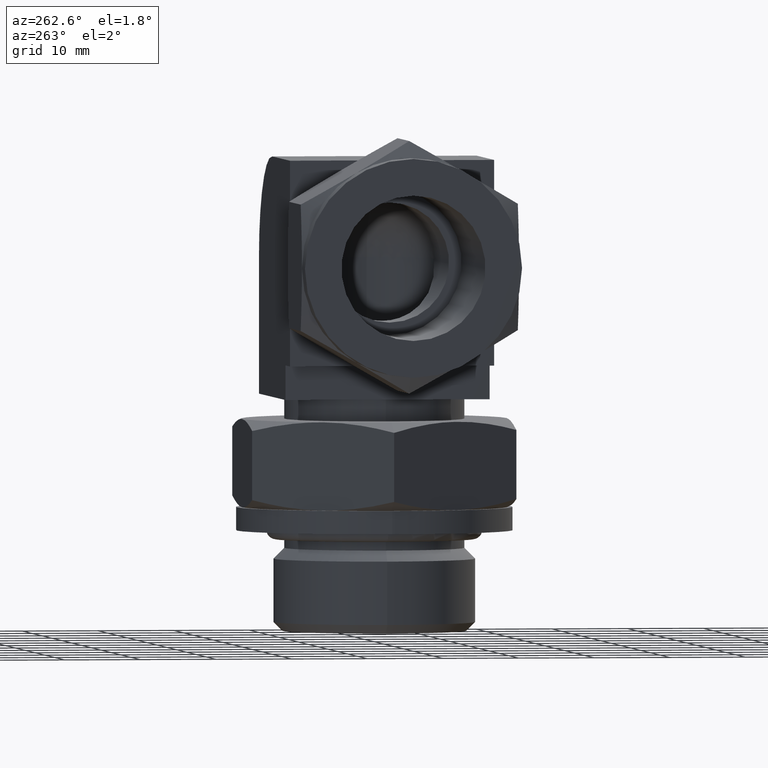
[diagram: clean part render]
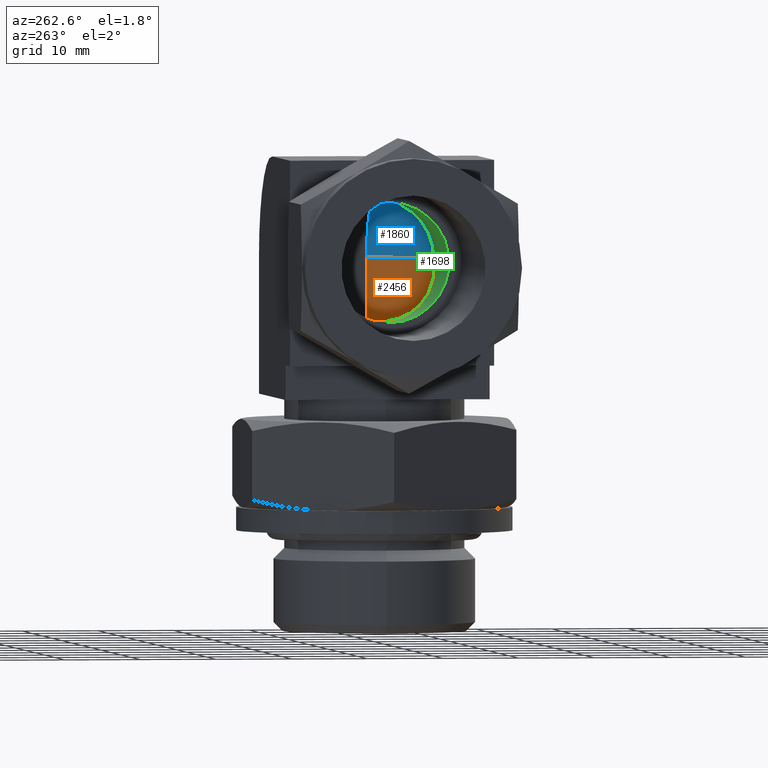
[diagram: same view with three faces highlighted in distinct colors, each labeled with its STEP entity id]
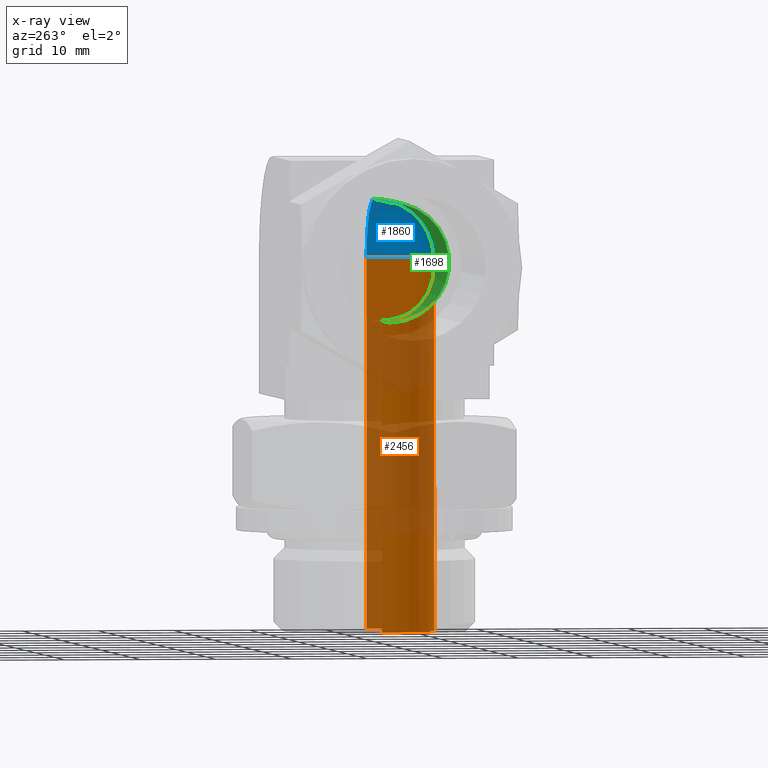
[diagram: x-ray of the same camera — body ghosted, the three highlighted faces saturated]
A machine part, auxiliary view with three faces highlighted in distinct colors.
The next image is the same camera in x-ray (body ghosted, the three faces saturated) — at least one of them is partly hidden behind the body in this view.
Their STEP definitions:

[orange] entity #2456 — the highlighted cylindrical surface (partial cylindrical patch) has radius 7.874 mm, axis along (0, 0, -1).
#157 = CARTESIAN_POINT ( 'NONE',  ( 35.26551759012575360, -7.873999999999998778, -4.612482409874222533 ) ) ;
#186 = DIRECTION ( 'NONE',  ( 0.000000000000000000, 0.000000000000000000, 1.000000000000000000 ) ) ;
#208 = ORIENTED_EDGE ( 'NONE', *, *, #1569, .T. ) ;
#297 = EDGE_CURVE ( 'NONE', #2180, #1265, #2218, .T. ) ;
#355 = VERTEX_POINT ( 'NONE', #440 ) ;
#440 = CARTESIAN_POINT ( 'NONE',  ( 47.75200000000000244, -9.642550429997377816E-16, 0.000000000000000000 ) ) ;
#480 = CARTESIAN_POINT ( 'NONE',  ( 32.00399999999999778, -9.642550429997389649E-16, -33.40100000000000335 ) ) ;
#497 = VECTOR ( 'NONE', #2038, 1000.000000000000000 ) ;
#508 = LINE ( 'NONE', #1984, #1032 ) ;
#523 = CARTESIAN_POINT ( 'NONE',  ( 32.00400000000001910, -4.612482409874249178, -7.873999999999954369 ) ) ;
#573 = CARTESIAN_POINT ( 'NONE',  ( 39.87800000000000011, 0.000000000000000000, -33.40100000000000335 ) ) ;
#574 = CARTESIAN_POINT ( 'NONE',  ( 39.87800000000000011, 0.000000000000000000, 0.000000000000000000 ) ) ;
#719 = AXIS2_PLACEMENT_3D ( 'NONE', #1752, #1922, #1147 ) ;
#756 = ORIENTED_EDGE ( 'NONE', *, *, #1969, .T. ) ;
#796 = CIRCLE ( 'NONE', #1445, 7.873999999999998778 ) ;
#932 = ORIENTED_EDGE ( 'NONE', *, *, #297, .T. ) ;
#962 = DIRECTION ( 'NONE',  ( 1.000000000000000000, 0.000000000000000000, 0.000000000000000000 ) ) ;
#1004 = AXIS2_PLACEMENT_3D ( 'NONE', #573, #1348, #1897 ) ;
#1032 = VECTOR ( 'NONE', #1455, 1000.000000000000000 ) ;
#1147 = DIRECTION ( 'NONE',  ( -1.000000000000000000, 0.000000000000000000, 0.000000000000000000 ) ) ;
#1245 = CIRCLE ( 'NONE', #719, 7.873999999999998778 ) ;
#1265 = VERTEX_POINT ( 'NONE', #1344 ) ;
#1336 = EDGE_CURVE ( 'NONE', #1374, #1265, #1340, .T. ) ;
#1340 =( BOUNDED_CURVE ( )  B_SPLINE_CURVE ( 3, ( #2449, #157, #523, #2283 ),
 .UNSPECIFIED., .F., .T. ) 
 B_SPLINE_CURVE_WITH_KNOTS ( ( 4, 4 ),
 ( 1.570796326794896780, 3.141592653589793116 ),
 .UNSPECIFIED. ) 
 CURVE ( )  GEOMETRIC_REPRESENTATION_ITEM ( )  RATIONAL_B_SPLINE_CURVE ( ( 1.000000000000000000, 0.8047378541243650485, 0.8047378541243650485, 1.000000000000000000 ) ) 
 REPRESENTATION_ITEM ( '' )  );
#1344 = CARTESIAN_POINT ( 'NONE',  ( 32.00399999999999778, -9.642550429997389649E-16, -7.874000000000000554 ) ) ;
#1348 = DIRECTION ( 'NONE',  ( 1.110223024625159992E-16, 0.000000000000000000, -1.000000000000000000 ) ) ;
#1374 = VERTEX_POINT ( 'NONE', #2141 ) ;
#1445 = AXIS2_PLACEMENT_3D ( 'NONE', #574, #186, #962 ) ;
#1455 = DIRECTION ( 'NONE',  ( 1.110223024625159992E-16, 0.000000000000000000, -1.000000000000000000 ) ) ;
#1534 = EDGE_LOOP ( 'NONE', ( #932, #1720, #756, #208, #1947 ) ) ;
#1541 = FACE_OUTER_BOUND ( 'NONE', #1534, .T. ) ;
#1569 = EDGE_CURVE ( 'NONE', #355, #1791, #508, .T. ) ;
#1720 = ORIENTED_EDGE ( 'NONE', *, *, #1336, .F. ) ;
#1736 = CARTESIAN_POINT ( 'NONE',  ( 47.75200000000000244, 9.642550429997389649E-16, -48.76800000000000068 ) ) ;
#1752 = CARTESIAN_POINT ( 'NONE',  ( 39.87800000000000011, 0.000000000000000000, -48.76800000000000068 ) ) ;
#1791 = VERTEX_POINT ( 'NONE', #1736 ) ;
#1897 = DIRECTION ( 'NONE',  ( -1.000000000000000000, 0.000000000000000000, 0.000000000000000000 ) ) ;
#1922 = DIRECTION ( 'NONE',  ( -1.110223024625159992E-16, 0.000000000000000000, 1.000000000000000000 ) ) ;
#1947 = ORIENTED_EDGE ( 'NONE', *, *, #1953, .F. ) ;
#1953 = EDGE_CURVE ( 'NONE', #2180, #1791, #1245, .T. ) ;
#1969 = EDGE_CURVE ( 'NONE', #1374, #355, #796, .T. ) ;
#1984 = CARTESIAN_POINT ( 'NONE',  ( 47.75200000000000244, 9.642550429997389649E-16, -33.40100000000000335 ) ) ;
#2038 = DIRECTION ( 'NONE',  ( -1.110223024625159992E-16, 0.000000000000000000, 1.000000000000000000 ) ) ;
#2141 = CARTESIAN_POINT ( 'NONE',  ( 39.87800000000000011, -7.874000000000000554, 0.000000000000000000 ) ) ;
#2180 = VERTEX_POINT ( 'NONE', #2259 ) ;
#2218 = LINE ( 'NONE', #480, #497 ) ;
#2259 = CARTESIAN_POINT ( 'NONE',  ( 32.00399999999999778, 0.000000000000000000, -48.76800000000000068 ) ) ;
#2283 = CARTESIAN_POINT ( 'NONE',  ( 32.00399999999999778, -9.642550429997389649E-16, -7.874000000000000554 ) ) ;
#2307 = CYLINDRICAL_SURFACE ( 'NONE', #1004, 7.873999999999998778 ) ;
#2449 = CARTESIAN_POINT ( 'NONE',  ( 39.87800000000000011, -7.874000000000000554, 0.000000000000000000 ) ) ;
#2456 = ADVANCED_FACE ( 'NONE', ( #1541 ), #2307, .F. ) ;

[blue] entity #1860 — the highlighted spherical surface has radius 7.874 mm.
#125 = DIRECTION ( 'NONE',  ( 0.000000000000000000, 0.000000000000000000, -1.000000000000000000 ) ) ;
#142 = AXIS2_PLACEMENT_3D ( 'NONE', #901, #1862, #125 ) ;
#186 = DIRECTION ( 'NONE',  ( 0.000000000000000000, 0.000000000000000000, 1.000000000000000000 ) ) ;
#266 = DIRECTION ( 'NONE',  ( 0.000000000000000000, 0.000000000000000000, 1.000000000000000000 ) ) ;
#340 = CIRCLE ( 'NONE', #1071, 7.874000000000000554 ) ;
#344 = CIRCLE ( 'NONE', #142, 7.874000000000000554 ) ;
#355 = VERTEX_POINT ( 'NONE', #440 ) ;
#440 = CARTESIAN_POINT ( 'NONE',  ( 47.75200000000000244, -9.642550429997377816E-16, 0.000000000000000000 ) ) ;
#486 = ORIENTED_EDGE ( 'NONE', *, *, #1969, .F. ) ;
#574 = CARTESIAN_POINT ( 'NONE',  ( 39.87800000000000011, 0.000000000000000000, 0.000000000000000000 ) ) ;
#604 = CARTESIAN_POINT ( 'NONE',  ( 39.87800000000000011, 1.726674436047150038E-31, 2.819966482547900216E-15 ) ) ;
#676 = AXIS2_PLACEMENT_3D ( 'NONE', #604, #1570, #1153 ) ;
#796 = CIRCLE ( 'NONE', #1445, 7.873999999999998778 ) ;
#901 = CARTESIAN_POINT ( 'NONE',  ( 39.87800000000000011, 0.000000000000000000, 2.002176202609009946E-15 ) ) ;
#962 = DIRECTION ( 'NONE',  ( 1.000000000000000000, 0.000000000000000000, 0.000000000000000000 ) ) ;
#1071 = AXIS2_PLACEMENT_3D ( 'NONE', #1096, #2377, #266 ) ;
#1096 = CARTESIAN_POINT ( 'NONE',  ( 39.87800000000000011, 1.726674436047150038E-31, 2.819966482547900216E-15 ) ) ;
#1122 = EDGE_CURVE ( 'NONE', #1611, #355, #340, .T. ) ;
#1153 = DIRECTION ( 'NONE',  ( 1.000000000000000000, 0.000000000000000000, 0.000000000000000000 ) ) ;
#1374 = VERTEX_POINT ( 'NONE', #2141 ) ;
#1375 = FACE_OUTER_BOUND ( 'NONE', #1476, .T. ) ;
#1445 = AXIS2_PLACEMENT_3D ( 'NONE', #574, #186, #962 ) ;
#1474 = ORIENTED_EDGE ( 'NONE', *, *, #1122, .T. ) ;
#1476 = EDGE_LOOP ( 'NONE', ( #1474, #486, #1908 ) ) ;
#1570 = DIRECTION ( 'NONE',  ( 0.000000000000000000, 1.000000000000000000, 0.000000000000000000 ) ) ;
#1611 = VERTEX_POINT ( 'NONE', #1822 ) ;
#1708 = EDGE_CURVE ( 'NONE', #1611, #1374, #344, .T. ) ;
#1822 = CARTESIAN_POINT ( 'NONE',  ( 39.87800000000000011, 2.797212586396380391E-31, 7.874000000000000554 ) ) ;
#1860 = ADVANCED_FACE ( 'NONE', ( #1375 ), #2338, .F. ) ;
#1862 = DIRECTION ( 'NONE',  ( 1.000000000000000000, 0.000000000000000000, 1.110223024625159992E-16 ) ) ;
#1908 = ORIENTED_EDGE ( 'NONE', *, *, #1708, .F. ) ;
#1969 = EDGE_CURVE ( 'NONE', #1374, #355, #796, .T. ) ;
#2141 = CARTESIAN_POINT ( 'NONE',  ( 39.87800000000000011, -7.874000000000000554, 0.000000000000000000 ) ) ;
#2338 = SPHERICAL_SURFACE ( 'NONE', #676, 7.874000000000000554 ) ;
#2377 = DIRECTION ( 'NONE',  ( 1.224606353822379970E-16, 1.000000000000000000, 0.000000000000000000 ) ) ;

[green] entity #1698 — the highlighted cylindrical surface (partial cylindrical patch) has radius 7.874 mm, axis along (1, 0, 0).
#6 = EDGE_CURVE ( 'NONE', #337, #1704, #288, .T. ) ;
#15 = ORIENTED_EDGE ( 'NONE', *, *, #496, .T. ) ;
#125 = DIRECTION ( 'NONE',  ( 0.000000000000000000, 0.000000000000000000, -1.000000000000000000 ) ) ;
#142 = AXIS2_PLACEMENT_3D ( 'NONE', #901, #1862, #125 ) ;
#157 = CARTESIAN_POINT ( 'NONE',  ( 35.26551759012575360, -7.873999999999998778, -4.612482409874222533 ) ) ;
#204 = DIRECTION ( 'NONE',  ( 1.000000000000000000, 0.000000000000000000, 1.110223024625159992E-16 ) ) ;
#288 = CIRCLE ( 'NONE', #1673, 7.874000000000000554 ) ;
#337 = VERTEX_POINT ( 'NONE', #491 ) ;
#344 = CIRCLE ( 'NONE', #142, 7.874000000000000554 ) ;
#369 = DIRECTION ( 'NONE',  ( 0.000000000000000000, 0.000000000000000000, -1.000000000000000000 ) ) ;
#491 = CARTESIAN_POINT ( 'NONE',  ( 24.38400000000000034, -9.642550429997399509E-16, -7.874000000000000554 ) ) ;
#496 = EDGE_CURVE ( 'NONE', #1265, #337, #2291, .T. ) ;
#523 = CARTESIAN_POINT ( 'NONE',  ( 32.00400000000001910, -4.612482409874249178, -7.873999999999954369 ) ) ;
#572 = DIRECTION ( 'NONE',  ( -1.000000000000000000, 0.000000000000000000, -1.110223024625159992E-16 ) ) ;
#586 = LINE ( 'NONE', #1955, #1995 ) ;
#859 = ORIENTED_EDGE ( 'NONE', *, *, #979, .T. ) ;
#901 = CARTESIAN_POINT ( 'NONE',  ( 39.87800000000000011, 0.000000000000000000, 2.002176202609009946E-15 ) ) ;
#943 = FACE_OUTER_BOUND ( 'NONE', #2170, .T. ) ;
#979 = EDGE_CURVE ( 'NONE', #1704, #1611, #586, .T. ) ;
#986 = ORIENTED_EDGE ( 'NONE', *, *, #1336, .T. ) ;
#1133 = CARTESIAN_POINT ( 'NONE',  ( 30.86100000000000065, 0.000000000000000000, 1.001088101304499845E-15 ) ) ;
#1265 = VERTEX_POINT ( 'NONE', #1344 ) ;
#1336 = EDGE_CURVE ( 'NONE', #1374, #1265, #1340, .T. ) ;
#1340 =( BOUNDED_CURVE ( )  B_SPLINE_CURVE ( 3, ( #2449, #157, #523, #2283 ),
 .UNSPECIFIED., .F., .T. ) 
 B_SPLINE_CURVE_WITH_KNOTS ( ( 4, 4 ),
 ( 1.570796326794896780, 3.141592653589793116 ),
 .UNSPECIFIED. ) 
 CURVE ( )  GEOMETRIC_REPRESENTATION_ITEM ( )  RATIONAL_B_SPLINE_CURVE ( ( 1.000000000000000000, 0.8047378541243650485, 0.8047378541243650485, 1.000000000000000000 ) ) 
 REPRESENTATION_ITEM ( '' )  );
#1344 = CARTESIAN_POINT ( 'NONE',  ( 32.00399999999999778, -9.642550429997389649E-16, -7.874000000000000554 ) ) ;
#1347 = DIRECTION ( 'NONE',  ( 0.000000000000000000, 0.000000000000000000, -1.000000000000000000 ) ) ;
#1374 = VERTEX_POINT ( 'NONE', #2141 ) ;
#1403 = ORIENTED_EDGE ( 'NONE', *, *, #6, .T. ) ;
#1505 = ORIENTED_EDGE ( 'NONE', *, *, #1708, .T. ) ;
#1536 = DIRECTION ( 'NONE',  ( 1.000000000000000000, 0.000000000000000000, 1.110223024625159992E-16 ) ) ;
#1597 = AXIS2_PLACEMENT_3D ( 'NONE', #1133, #1536, #369 ) ;
#1611 = VERTEX_POINT ( 'NONE', #1822 ) ;
#1661 = CARTESIAN_POINT ( 'NONE',  ( 30.86100000000000065, -9.642550429997399509E-16, -7.874000000000000554 ) ) ;
#1673 = AXIS2_PLACEMENT_3D ( 'NONE', #2111, #572, #1347 ) ;
#1698 = ADVANCED_FACE ( 'NONE', ( #943 ), #2484, .F. ) ;
#1704 = VERTEX_POINT ( 'NONE', #2077 ) ;
#1708 = EDGE_CURVE ( 'NONE', #1611, #1374, #344, .T. ) ;
#1822 = CARTESIAN_POINT ( 'NONE',  ( 39.87800000000000011, 2.797212586396380391E-31, 7.874000000000000554 ) ) ;
#1862 = DIRECTION ( 'NONE',  ( 1.000000000000000000, 0.000000000000000000, 1.110223024625159992E-16 ) ) ;
#1955 = CARTESIAN_POINT ( 'NONE',  ( 30.86100000000000065, 9.642550429997399509E-16, 7.874000000000000554 ) ) ;
#1995 = VECTOR ( 'NONE', #204, 1000.000000000000000 ) ;
#2051 = DIRECTION ( 'NONE',  ( -1.000000000000000000, 0.000000000000000000, -1.110223024625159992E-16 ) ) ;
#2077 = CARTESIAN_POINT ( 'NONE',  ( 24.38400000000000034, 9.642550429997399509E-16, 7.874000000000000554 ) ) ;
#2111 = CARTESIAN_POINT ( 'NONE',  ( 24.38400000000000034, 0.000000000000000000, 2.819966482547899624E-16 ) ) ;
#2141 = CARTESIAN_POINT ( 'NONE',  ( 39.87800000000000011, -7.874000000000000554, 0.000000000000000000 ) ) ;
#2170 = EDGE_LOOP ( 'NONE', ( #15, #1403, #859, #1505, #986 ) ) ;
#2283 = CARTESIAN_POINT ( 'NONE',  ( 32.00399999999999778, -9.642550429997389649E-16, -7.874000000000000554 ) ) ;
#2291 = LINE ( 'NONE', #1661, #2429 ) ;
#2429 = VECTOR ( 'NONE', #2051, 1000.000000000000000 ) ;
#2449 = CARTESIAN_POINT ( 'NONE',  ( 39.87800000000000011, -7.874000000000000554, 0.000000000000000000 ) ) ;
#2484 = CYLINDRICAL_SURFACE ( 'NONE', #1597, 7.874000000000000554 ) ;